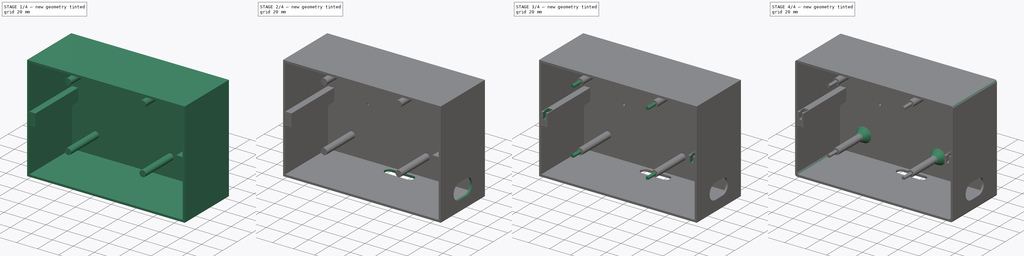
[diagram: build sequence overview — one tinted view per stage of 4, left to right]
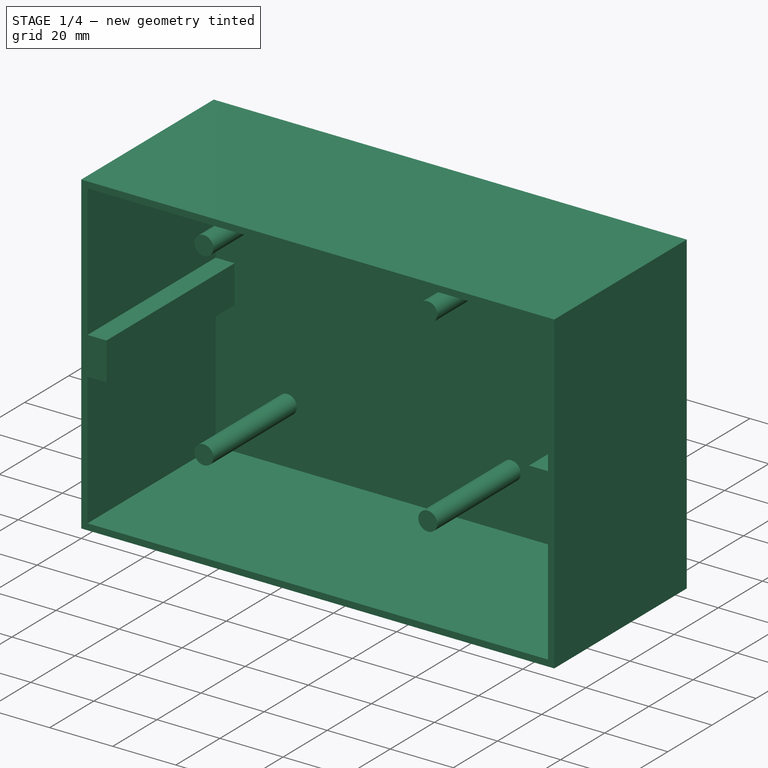
[diagram: stage 1 of 4 — iso view after this stage's code; geometry added in this stage tinted green]
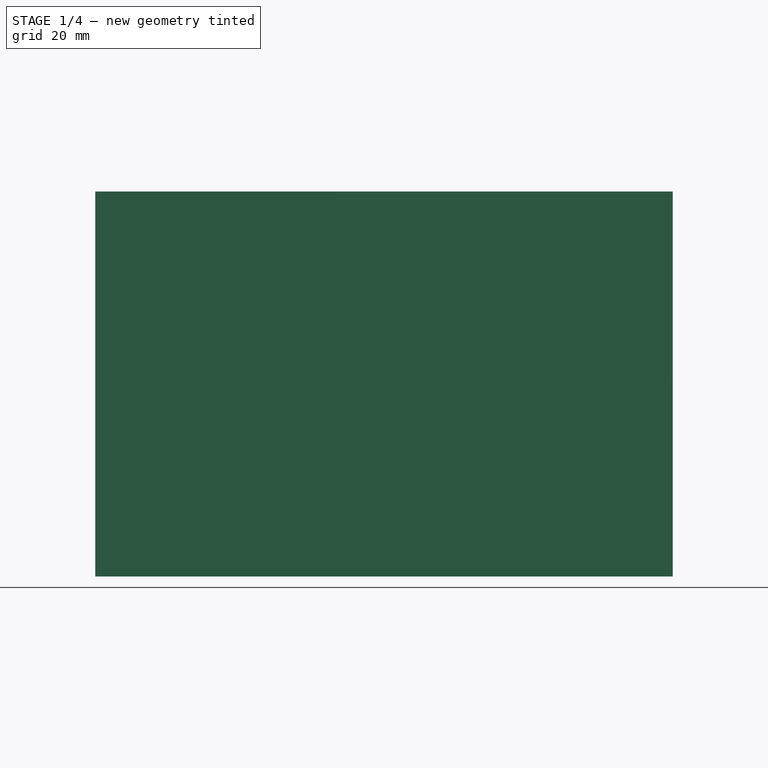
[diagram: stage 1 of 4 — front view after this stage's code; geometry added in this stage tinted green]
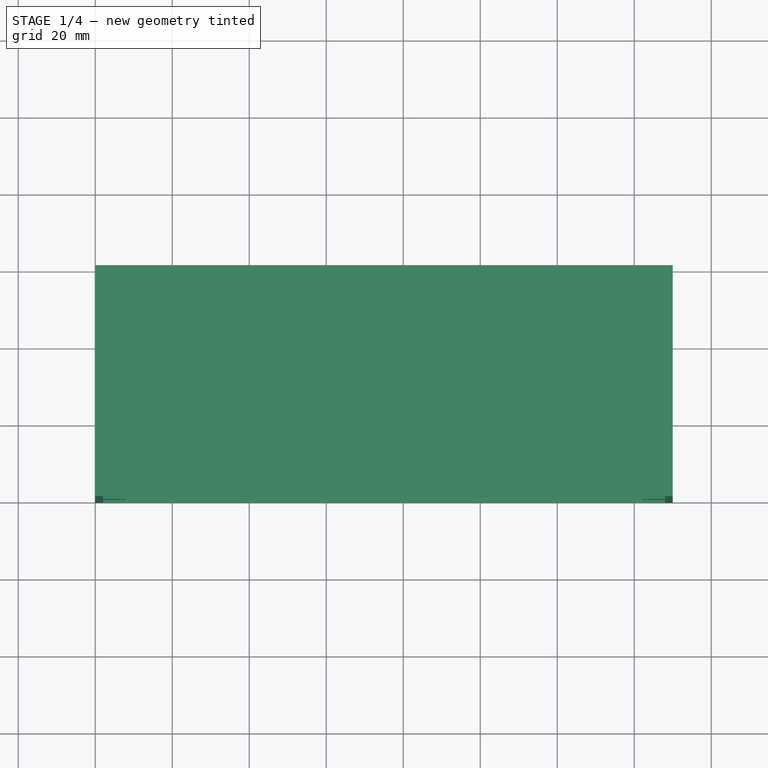
[diagram: stage 1 of 4 — top view after this stage's code; geometry added in this stage tinted green]
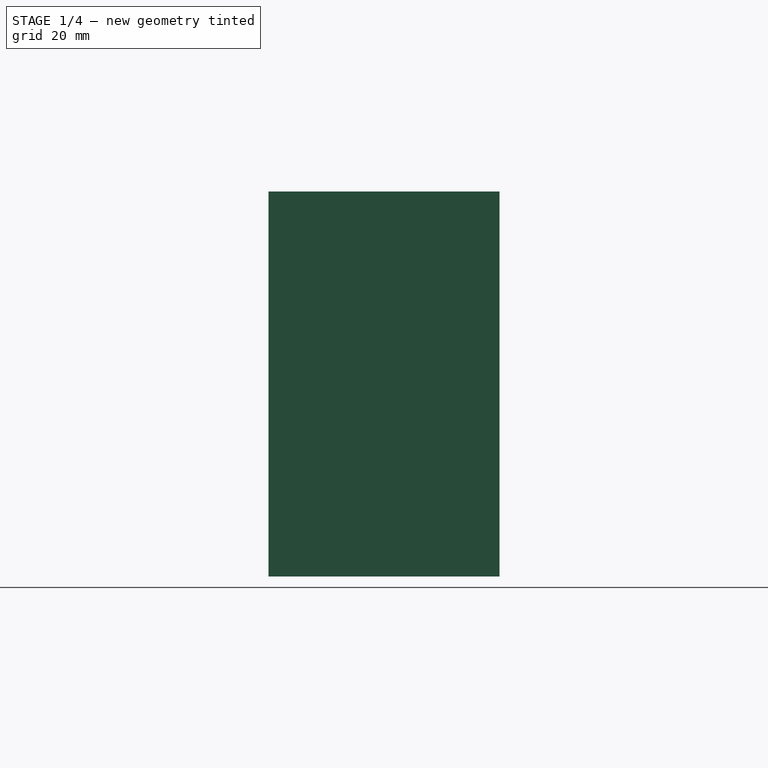
[diagram: stage 1 of 4 — right view after this stage's code; geometry added in this stage tinted green]
FCSTD DOCUMENT  (FreeCAD 0.19R22665 (Git))
Label: box_part
License: All rights reserved
LicenseURL: http://en.wikipedia.org/wiki/All_rights_reserved
objects: Sketcher::SketchObject×9, PartDesign::Pocket×6, PartDesign::Pad×3, PartDesign::CoordinateSystem×3, PartDesign::Fillet×2, PartDesign::Chamfer×1, PartDesign::Body×1
note: 37 computed .brp shape members not serialized (recipe doc carries the construction recipe); baked Part::Feature solids carry a one-line shape summary decoded from their .brp

FEATURE [Sketcher::SketchObject] Sketch
  MapMode = 5
  Placement = pos=(0,0,0) rot=(1,0,0;1.5708rad)
  Support = -> [XZ_Plane]
  sketch-geometry (4):
    g0: LineSegment StartX=0 StartY=0 StartZ=0 EndX=150 EndY=0 EndZ=0
    g1: LineSegment StartX=150 StartY=0 StartZ=0 EndX=150 EndY=100 EndZ=0
    g2: LineSegment StartX=150 StartY=100 StartZ=0 EndX=0 EndY=100 EndZ=0
    g3: LineSegment StartX=0 StartY=100 StartZ=0 EndX=0 EndY=0 EndZ=0
  constraints (11):
    c: Coincident(g0,g1)
    c: Coincident(g1,g2)
    c: Coincident(g2,g3)
    c: Coincident(g3,g0)
    c: Horizontal(g0)
    c: Horizontal(g2)
    c: Vertical(g1)
    c: Vertical(g3)
    c: Coincident(g0,g-1)
    c: Distance(g2) = 150
    c: Distance(g3) = 100
FEATURE [PartDesign::Pad] Pad
  Direction = (1,1,1)
  Length = 60
  Length2 = 100
  Placement = pos=(0,0,0) rot=(1,0,0;1.5708rad)
  Profile = -> Sketch
  Type = 0
FEATURE [Sketcher::SketchObject] Sketch001
  ExternalGeometry = -> [Pad]
  MapMode = 5
  Placement = pos=(0,-60,-1.32e-14) rot=(1,0,0;1.5708rad)
  Support = -> [Pad]
  sketch-geometry (13):
    g0: LineSegment StartX=2 StartY=98 StartZ=0 EndX=148 EndY=98 EndZ=0
    g1: LineSegment StartX=148 StartY=98 StartZ=0 EndX=148 EndY=56 EndZ=0
    g2: LineSegment StartX=148 StartY=56 StartZ=0 EndX=142 EndY=56 EndZ=0
    g3: LineSegment StartX=142 StartY=56 StartZ=0 EndX=142 EndY=44 EndZ=0
    g4: LineSegment StartX=142 StartY=44 StartZ=0 EndX=148 EndY=44 EndZ=0
    g5: LineSegment StartX=148 StartY=44 StartZ=0 EndX=148 EndY=2 EndZ=0
    g6: LineSegment StartX=148 StartY=2 StartZ=0 EndX=2 EndY=2 EndZ=0
    g7: LineSegment StartX=2 StartY=2 StartZ=0 EndX=2 EndY=44 EndZ=0
    g8: LineSegment StartX=2 StartY=44 StartZ=0 EndX=8 EndY=44 EndZ=0
    g9: LineSegment StartX=8 StartY=44 StartZ=0 EndX=8 EndY=56 EndZ=0
    g10: LineSegment StartX=8 StartY=56 StartZ=0 EndX=2 EndY=56 EndZ=0
    g11: LineSegment StartX=2 StartY=56 StartZ=0 EndX=2 EndY=98 EndZ=0
    g12: LineSegment [constr] StartX=0 StartY=50 StartZ=0 EndX=150 EndY=50 EndZ=0
  constraints (37):
    c: Horizontal(g0)
    c: Coincident(g0,g1)
    c: Vertical(g1)
    c: Coincident(g1,g2)
    c: Horizontal(g2)
    c: Coincident(g2,g3)
    c: Vertical(g3)
    c: Coincident(g3,g4)
    c: Horizontal(g4)
    c: Coincident(g4,g5)
    c: Vertical(g5)
    c: Coincident(g5,g6)
    c: Horizontal(g6)
    c: Coincident(g6,g7)
    c: Vertical(g7)
    c: Coincident(g7,g8)
    c: Horizontal(g8)
    c: Coincident(g8,g9)
    c: Vertical(g9)
    c: Coincident(g9,g10)
    c: Horizontal(g10)
    c: Coincident(g10,g11)
    c: Coincident(g11,g0)
    c: Vertical(g11)
    c: DistanceX(g-1,g6) = 2
    c: DistanceY(g-1,g6) = 2
    c: DistanceX(g5,g-5) = 2
    c: DistanceY(g0,g-6) = 2
    c: PointOnObject(g12,g-4)
    c: PointOnObject(g12,g-5)
    c: Symmetric(g-6,g-1,g12)
    c: Symmetric(g10,g7,g12)
    c: DistanceX(g10,g10) = 6
    c: DistanceY(g9,g9) = 12
    c: Equal(g2,g10)
    c: Equal(g3,g9)
    c: Symmetric(g1,g4,g12)
FEATURE [PartDesign::Pocket] Pocket
  BaseFeature = -> Pad
  Length = 58
  Length2 = 100
  Placement = pos=(0,0,0) rot=(1,0,0;1.5708rad)
  Profile = -> Sketch001
  Type = 0
FEATURE [Sketcher::SketchObject] Sketch002
  ExternalGeometry = -> [Pocket]
  MapMode = 5
  Placement = pos=(0,-2,-4e-16) rot=(1,0,0;1.5708rad)
  Support = -> [Pocket]
  sketch-geometry (20):
    g0: LineSegment [constr] StartX=20.75 StartY=68 StartZ=0 EndX=100.75 EndY=68 EndZ=0
    g1: LineSegment [constr] StartX=100.75 StartY=68 StartZ=0 EndX=100.75 EndY=32 EndZ=0
    g2: LineSegment [constr] StartX=100.75 StartY=32 StartZ=0 EndX=20.75 EndY=32 EndZ=0
    g3: LineSegment [constr] StartX=20.75 StartY=32 StartZ=0 EndX=20.75 EndY=68 EndZ=0
    g4: LineSegment [constr] StartX=8 StartY=50 StartZ=0 EndX=142 EndY=50 EndZ=0
    g5: Circle [constr] CenterX=121.75 CenterY=50 CenterZ=0 NormalX=0 NormalY=0 NormalZ=1 AngleXU=0 Radius=9.5
    g6: LineSegment [constr] StartX=101.75 StartY=14 StartZ=0 EndX=18.75 EndY=14 EndZ=0
    g7: LineSegment [constr] StartX=18.75 StartY=14 StartZ=0 EndX=18.75 EndY=86 EndZ=0
    g8: LineSegment [constr] StartX=18.75 StartY=86 StartZ=0 EndX=101.75 EndY=86 EndZ=0
    g9: LineSegment [constr] StartX=101.75 StartY=86 StartZ=0 EndX=101.75 EndY=14 EndZ=0
    g10: LineSegment [constr] StartX=101.75 StartY=59 StartZ=0 EndX=107.75 EndY=59 EndZ=0
    g11: LineSegment [constr] StartX=107.75 StartY=59 StartZ=0 EndX=107.75 EndY=72 EndZ=0
    g12: LineSegment [constr] StartX=107.75 StartY=72 StartZ=0 EndX=101.75 EndY=72 EndZ=0
    g13: LineSegment [constr] StartX=101.75 StartY=72 StartZ=0 EndX=101.75 EndY=59 EndZ=0
    g14: Circle [constr] CenterX=13.375 CenterY=50 CenterZ=0 NormalX=0 NormalY=0 NormalZ=1 AngleXU=0 Radius=5.375
    g15: Circle [constr] CenterX=136.625 CenterY=50 CenterZ=0 NormalX=0 NormalY=0 NormalZ=1 AngleXU=0 Radius=5.375
    g16: Circle CenterX=24.75 CenterY=80 CenterZ=0 NormalX=0 NormalY=0 NormalZ=1 AngleXU=0 Radius=3
    g17: Circle CenterX=95.75 CenterY=80 CenterZ=0 NormalX=0 NormalY=0 NormalZ=1 AngleXU=0 Radius=3
    g18: Circle CenterX=24.75 CenterY=20 CenterZ=0 NormalX=0 NormalY=0 NormalZ=1 AngleXU=0 Radius=3
    g19: Circle CenterX=95.75 CenterY=20 CenterZ=0 NormalX=0 NormalY=0 NormalZ=1 AngleXU=0 Radius=3
  constraints (59):
    c: Coincident(g0,g1)
    c: Coincident(g1,g2)
    c: Coincident(g2,g3)
    c: Coincident(g3,g0)
    c: Horizontal(g0)
    c: Horizontal(g2)
    c: Vertical(g1)
    c: DistanceY(g3,g3) = 36
    c: DistanceX(g0,g0) = 80
    c: PointOnObject(g4,g-13)
    c: PointOnObject(g4,g-11)
    c: Symmetric(g-13,g-14,g4)
    c: Symmetric(g0,g2,g4)
    c: PointOnObject(g5,g4)
    c: Diameter(g5) = 19
    c: Coincident(g6,g7)
    c: Coincident(g7,g8)
    c: Coincident(g8,g9)
    c: Coincident(g9,g6)
    c: Horizontal(g6)
    c: Horizontal(g8)
    c: Vertical(g7)
    c: Vertical(g9)
    c: DistanceX(g6,g2) = 2
    c: DistanceY(g0,g7) = 18
    c: DistanceY(g6,g2) = 18
    c: DistanceX(g8,g8) = 83
    c: Coincident(g10,g11)
    c: Coincident(g11,g12)
    c: Coincident(g12,g13)
    c: Coincident(g13,g10)
    c: Horizontal(g10)
    c: Horizontal(g12)
    c: Vertical(g11)
    c: Vertical(g13)
    c: PointOnObject(g10,g9)
    c: DistanceY(g11,g11) = 13
    c: DistanceY(g12,g8) = 14
    c: DistanceX(g12,g12) = 6
    c: DistanceX(g6,g5) = 20
    c: PointOnObject(g14,g4)
    c: PointOnObject(g4,g14)
    c: Tangent(g14,g7)
    c: PointOnObject(g15,g4)
    c: PointOnObject(g4,g15)
    c: Tangent(g15,g5)
    c: Equal(g15,g14)
    c: DistanceX(g7,g16) = 6
    c: DistanceY(g16,g7) = 6
    c: Diameter(g16) = 6
    c: Horizontal(g17,g16)
    c: Equal(g17,g16)
    c: DistanceX(g17,g8) = 6
    c: Equal(g18,g16)
    c: Vertical(g16,g18)
    c: DistanceY(g6,g18) = 6
    c: Equal(g19,g16)
    c: Horizontal(g19,g18)
    c: Vertical(g17,g19)
FEATURE [PartDesign::Pad] Pad001
  BaseFeature = -> Pocket
  Direction = (1,1,1)
  Length = 37.8
  Length2 = 100
  Placement = pos=(0,0,0) rot=(1,0,0;1.5708rad)
  Profile = -> Sketch002
  Type = 0
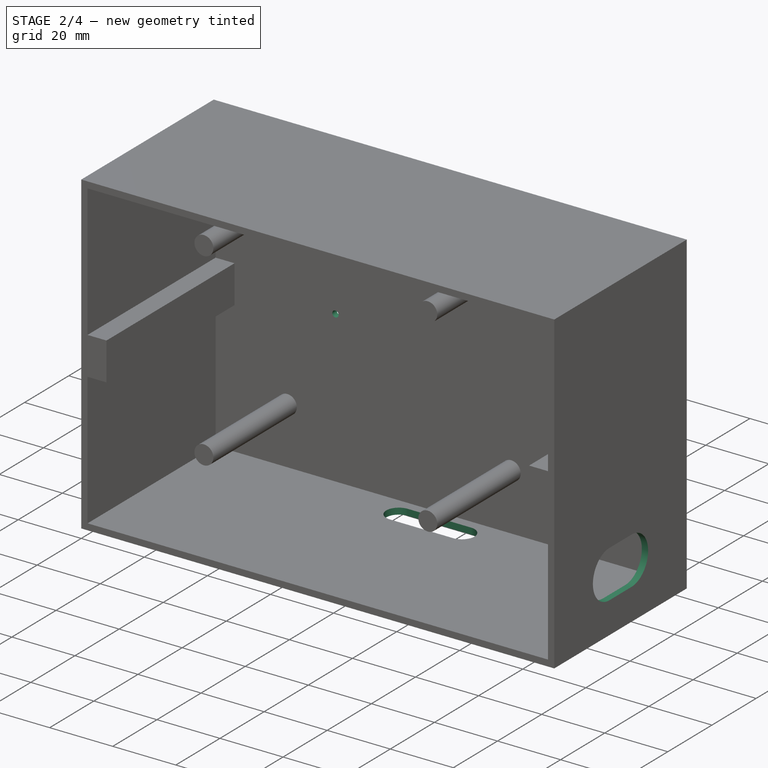
[diagram: stage 2 of 4 — iso view after this stage's code; geometry added in this stage tinted green]
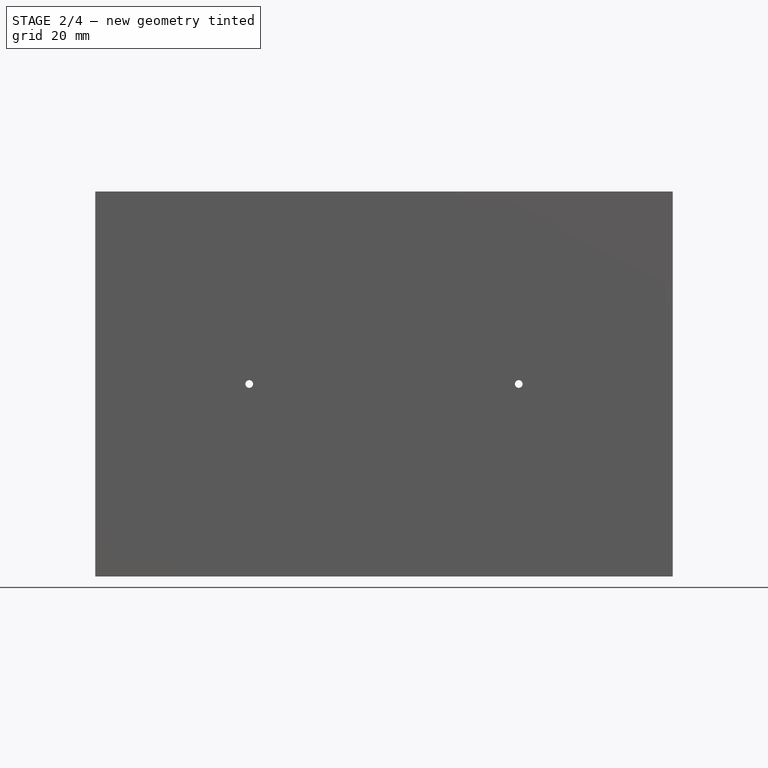
[diagram: stage 2 of 4 — front view after this stage's code; geometry added in this stage tinted green]
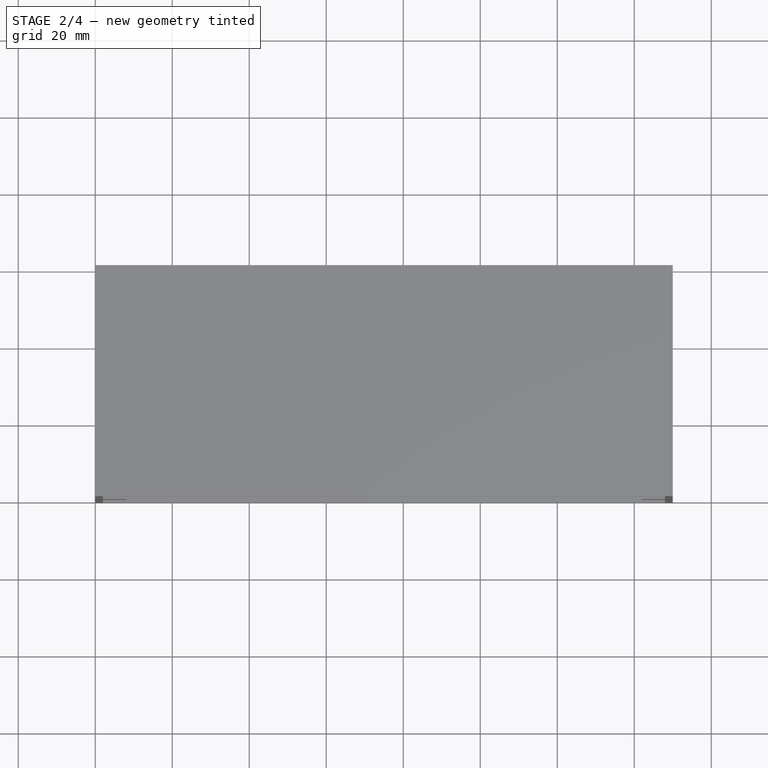
[diagram: stage 2 of 4 — top view after this stage's code; geometry added in this stage tinted green]
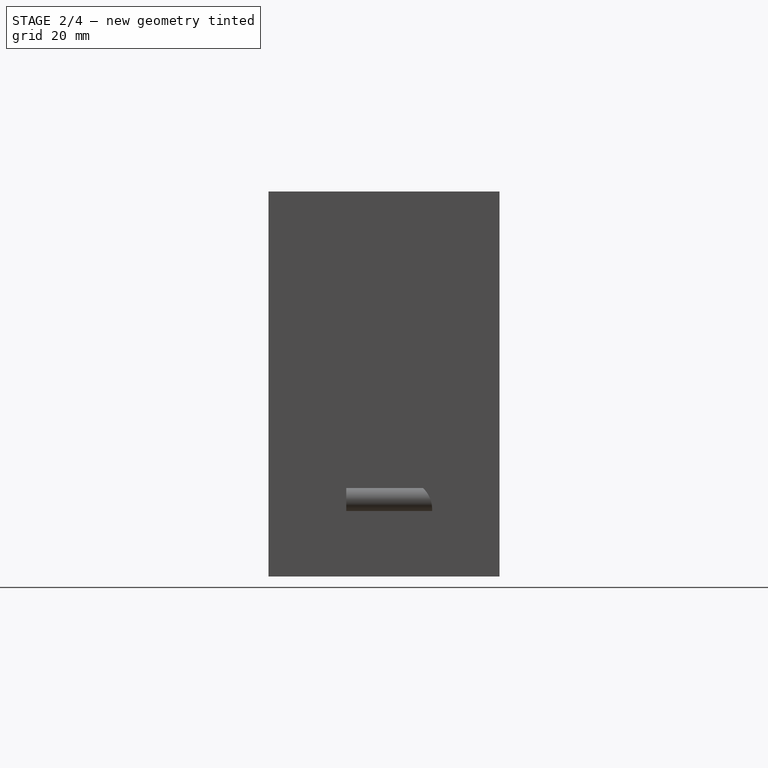
[diagram: stage 2 of 4 — right view after this stage's code; geometry added in this stage tinted green]
FEATURE [Sketcher::SketchObject] Sketch005
  MapMode = 5
  Placement = pos=(0,0,0) rot=(1,0,0;3.14159rad)
  sketch-geometry (5):
    g0: LineSegment [constr] StartX=75 StartY=60 StartZ=0 EndX=75 EndY=0 EndZ=0
    g1: ArcOfCircle CenterX=65 CenterY=9 CenterZ=0 NormalX=0 NormalY=0 NormalZ=1 AngleXU=0 Radius=4 StartAngle=1.5708 EndAngle=4.71239
    g2: ArcOfCircle CenterX=85 CenterY=9 CenterZ=0 NormalX=0 NormalY=0 NormalZ=1 AngleXU=0 Radius=4 StartAngle=4.71239 EndAngle=7.85398
    g3: LineSegment StartX=65 StartY=5 StartZ=0 EndX=85 EndY=5 EndZ=0
    g4: LineSegment StartX=65 StartY=13 StartZ=0 EndX=85 EndY=13 EndZ=0
  constraints (9):
    c: Tangent(g1,g4)
    c: Tangent(g1,g3)
    c: Tangent(g3,g2)
    c: Tangent(g4,g2)
    c: Horizontal(g3)
    c: DistanceX(g1,g2) = 20
    c: DistanceY(g1,g1) = 8
    c: Symmetric(g2,g1,g0)
    c: DistanceY(g0,g2) = 5
FEATURE [PartDesign::Pocket] Pocket001
  BaseFeature = -> Pad001
  Length = 5
  Length2 = 100
  Placement = pos=(0,0,0) rot=(1,0,0;1.5708rad)
  Profile = -> Sketch005
  Type = 2
FEATURE [Sketcher::SketchObject] Sketch006
  ExternalGeometry = -> [Pocket001]
  MapMode = 5
  Placement = pos=(150,0,0) rot=(0.707107,0,0.707107;3.14159rad)
  Support = -> [Pocket001]
  sketch-geometry (5):
    g0: LineSegment [constr] StartX=0 StartY=30 StartZ=0 EndX=2 EndY=30 EndZ=0
    g1: ArcOfCircle CenterX=17.5 CenterY=35 CenterZ=0 NormalX=0 NormalY=0 NormalZ=1 AngleXU=0 Radius=7.5 StartAngle=1e-16 EndAngle=3.14159
    g2: ArcOfCircle CenterX=17.5 CenterY=25 CenterZ=0 NormalX=0 NormalY=0 NormalZ=1 AngleXU=0 Radius=7.5 StartAngle=3.14159 EndAngle=6.28319
    g3: LineSegment StartX=10 StartY=35 StartZ=0 EndX=10 EndY=25 EndZ=0
    g4: LineSegment StartX=25 StartY=35 StartZ=0 EndX=25 EndY=25 EndZ=0
  constraints (12):
    c: PointOnObject(g0,g-6)
    c: PointOnObject(g0,g-4)
    c: Symmetric(g-6,g-1,g0)
    c: Tangent(g1,g4)
    c: Tangent(g1,g3)
    c: Tangent(g3,g2)
    c: Tangent(g4,g2)
    c: Vertical(g3)
    c: Symmetric(g1,g2,g0)
    c: DistanceX(g1,g1) = 15
    c: Distance(g1,g2) = 10
    c: DistanceX(g-6,g1) = 10
FEATURE [PartDesign::Pocket] Pocket002
  BaseFeature = -> Pocket001
  Length = 5
  Length2 = 100
  Placement = pos=(0,0,0) rot=(1,0,0;1.5708rad)
  Profile = -> Sketch006
  Type = 2
FEATURE [Sketcher::SketchObject] Sketch007
  ExternalGeometry = -> [Pocket002]
  MapMode = 5
  Placement = pos=(0,-2,-4e-16) rot=(1,0,0;1.5708rad)
  Support = -> [Pocket002]
  sketch-geometry (4):
    g0: Circle CenterX=40 CenterY=50 CenterZ=0 NormalX=0 NormalY=0 NormalZ=1 AngleXU=0 Radius=1
    g1: Circle CenterX=110 CenterY=50 CenterZ=0 NormalX=0 NormalY=0 NormalZ=1 AngleXU=0 Radius=1
    g2: LineSegment [constr] StartX=8 StartY=50 StartZ=0 EndX=142 EndY=50 EndZ=0
    g3: LineSegment [constr] StartX=75 StartY=98 StartZ=0 EndX=75 EndY=2 EndZ=0
  constraints (11):
    c: Diameter(g0) = 2
    c: Equal(g1,g0)
    c: DistanceX(g0,g1) = 70
    c: PointOnObject(g2,g-3)
    c: PointOnObject(g2,g-4)
    c: Symmetric(g-4,g-4,g2)
    c: PointOnObject(g0,g2)
    c: PointOnObject(g3,g-5)
    c: PointOnObject(g3,g-6)
    c: Symmetric(g-5,g-5,g3)
    c: Symmetric(g0,g1,g3)
FEATURE [PartDesign::Pocket] Pocket003
  BaseFeature = -> Pocket002
  Length = 2
  Length2 = 100
  Placement = pos=(0,0,0) rot=(1,0,0;1.5708rad)
  Profile = -> Sketch007
  Type = 1
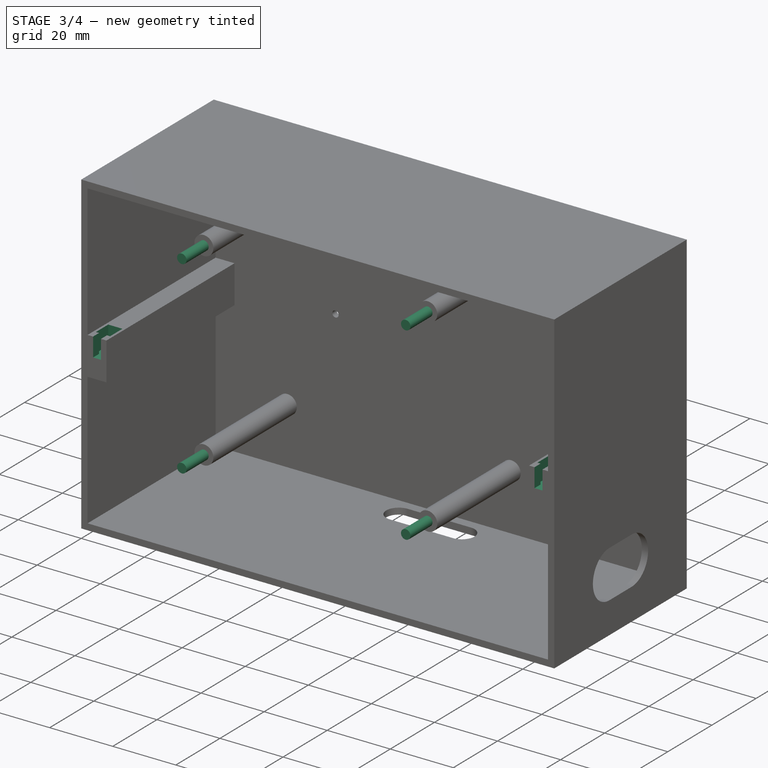
[diagram: stage 3 of 4 — iso view after this stage's code; geometry added in this stage tinted green]
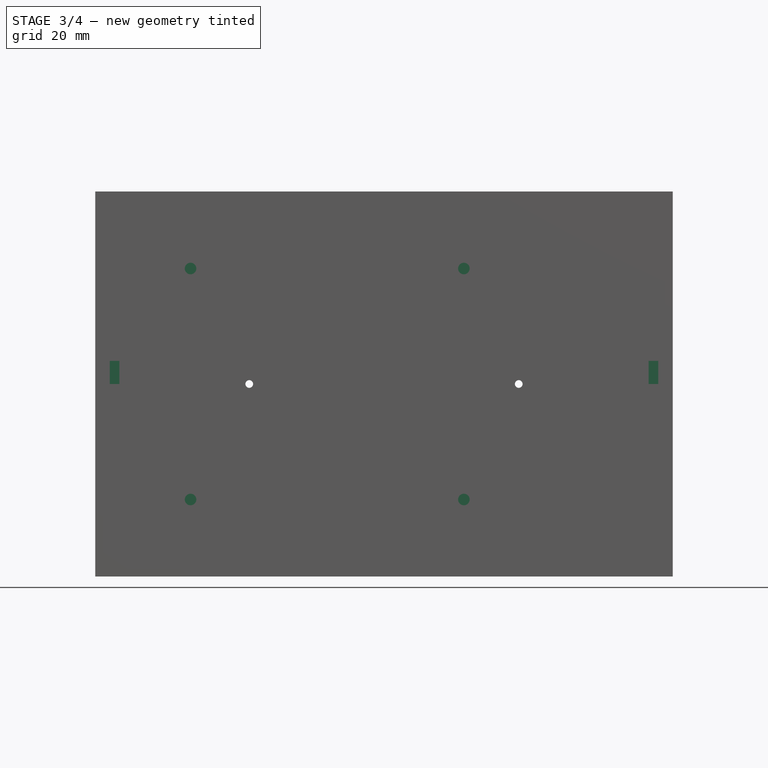
[diagram: stage 3 of 4 — front view after this stage's code; geometry added in this stage tinted green]
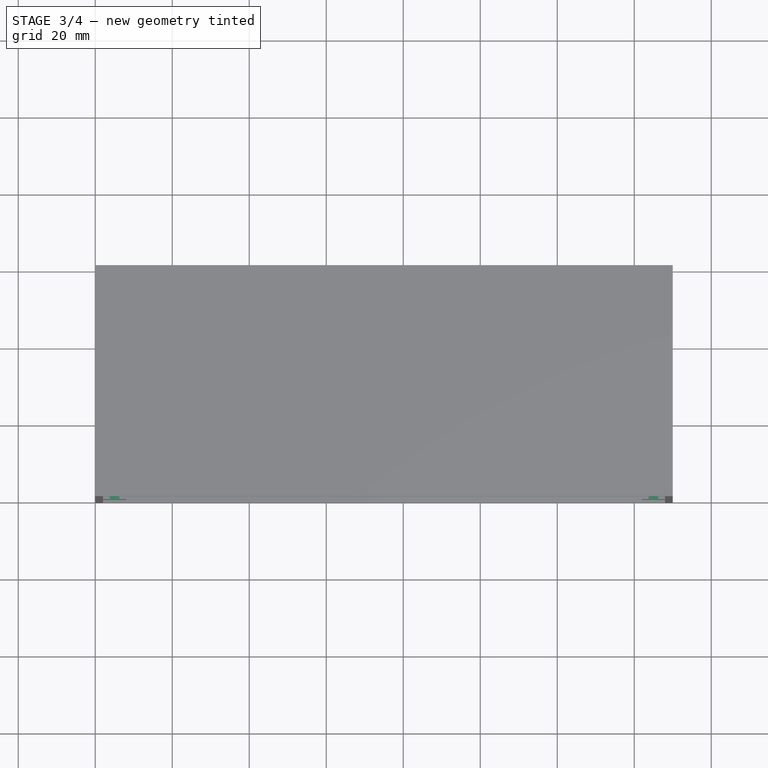
[diagram: stage 3 of 4 — top view after this stage's code; geometry added in this stage tinted green]
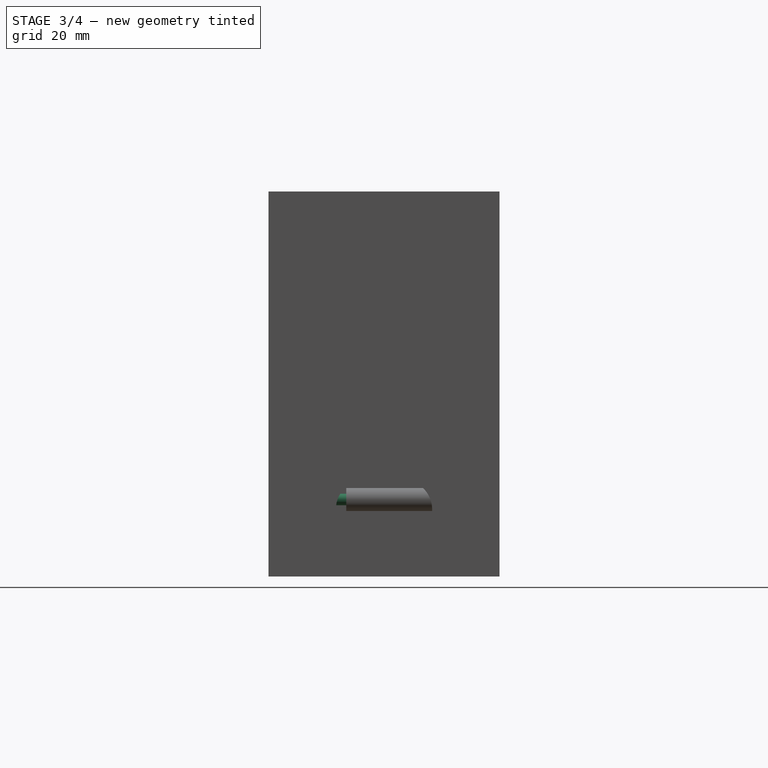
[diagram: stage 3 of 4 — right view after this stage's code; geometry added in this stage tinted green]
FEATURE [Sketcher::SketchObject] Sketch009
  ExternalGeometry = -> [Pocket003]
  MapMode = 5
  Placement = pos=(-2e-15,-39.8,-1.03e-14) rot=(1,0,0;1.5708rad)
  Support = -> [Pocket003]
  sketch-geometry (4):
    g0: Circle CenterX=24.75 CenterY=80 CenterZ=0 NormalX=0 NormalY=0 NormalZ=1 AngleXU=0 Radius=1.5
    g1: Circle CenterX=95.75 CenterY=80 CenterZ=0 NormalX=0 NormalY=0 NormalZ=1 AngleXU=0 Radius=1.5
    g2: Circle CenterX=24.75 CenterY=20 CenterZ=0 NormalX=0 NormalY=0 NormalZ=1 AngleXU=0 Radius=1.5
    g3: Circle CenterX=95.75 CenterY=20 CenterZ=0 NormalX=0 NormalY=0 NormalZ=1 AngleXU=0 Radius=1.5
  constraints (8):
    c: Coincident(g0,g-3)
    c: Coincident(g1,g-4)
    c: Coincident(g2,g-6)
    c: Coincident(g3,g-5)
    c: Diameter(g0) = 3
    c: Equal(g1,g0)
    c: Equal(g2,g0)
    c: Equal(g2,g3)
FEATURE [PartDesign::Pad] Pad003
  BaseFeature = -> Pocket003
  Direction = (1,1,1)
  Length = 10
  Length2 = 100
  Placement = pos=(0,0,0) rot=(1,0,0;1.5708rad)
  Profile = -> Sketch009
  Type = 0
FEATURE [Sketcher::SketchObject] Sketch010
  ExternalGeometry = -> [Pad003]
  MapMode = 5
  Placement = pos=(0,-1.85e-14,56) rot=(0,0,1;3.14159rad)
  Support = -> [Pad003]
  sketch-geometry (18):
    g0: LineSegment StartX=-3.75 StartY=60 StartZ=0 EndX=-3.75 EndY=57.3 EndZ=0
    g1: LineSegment StartX=-3.75 StartY=57.3 StartZ=0 EndX=-2.75 EndY=57.3 EndZ=0
    g2: LineSegment StartX=-2.75 StartY=57.3 StartZ=0 EndX=-2.75 EndY=51.7 EndZ=0
    g3: LineSegment StartX=-2.75 StartY=51.7 StartZ=0 EndX=-7.25 EndY=51.7 EndZ=0
    g4: LineSegment StartX=-7.25 StartY=51.7 StartZ=0 EndX=-7.25 EndY=57.3 EndZ=0
    g5: LineSegment StartX=-7.25 StartY=57.3 StartZ=0 EndX=-6.25 EndY=57.3 EndZ=0
    g6: LineSegment StartX=-6.25 StartY=57.3 StartZ=0 EndX=-6.25 EndY=60 EndZ=0
    g7: LineSegment StartX=-6.25 StartY=60 StartZ=0 EndX=-3.75 EndY=60 EndZ=0
    g8: LineSegment [constr] StartX=-2 StartY=50 StartZ=0 EndX=-8 EndY=50 EndZ=0
    g9: LineSegment [constr] StartX=-5 StartY=50 StartZ=0 EndX=-5 EndY=60 EndZ=0
    g10: LineSegment [constr] StartX=-6 StartY=60 StartZ=0 EndX=-4 EndY=60 EndZ=0
    g11: LineSegment [constr] StartX=-4 StartY=60 StartZ=0 EndX=-4 EndY=52 EndZ=0
    g12: LineSegment [constr] StartX=-4 StartY=52 StartZ=0 EndX=-6 EndY=52 EndZ=0
    g13: LineSegment [constr] StartX=-6 StartY=52 StartZ=0 EndX=-6 EndY=60 EndZ=0
    g14: LineSegment [constr] StartX=-7 StartY=52 StartZ=0 EndX=-3 EndY=52 EndZ=0
    g15: LineSegment [constr] StartX=-3 StartY=52 StartZ=0 EndX=-3 EndY=57 EndZ=0
    g16: LineSegment [constr] StartX=-3 StartY=57 StartZ=0 EndX=-7 EndY=57 EndZ=0
    g17: LineSegment [constr] StartX=-7 StartY=57 StartZ=0 EndX=-7 EndY=52 EndZ=0
  constraints (52):
    c: PointOnObject(g0,g-3)
    c: Vertical(g0)
    c: Coincident(g0,g1)
    c: Coincident(g1,g2)
    c: Vertical(g2)
    c: Coincident(g2,g3)
    c: Horizontal(g3)
    c: Coincident(g3,g4)
    c: Vertical(g4)
    c: Coincident(g4,g5)
    c: Horizontal(g5)
    c: Coincident(g5,g6)
    c: PointOnObject(g6,g-3)
    c: Vertical(g6)
    c: Coincident(g6,g7)
    c: Coincident(g7,g0)
    c: DistanceX(g6,g0) = 2.5
    c: DistanceX(g1,g1) = 1
    c: DistanceY(g4,g4) = 5.6
    c: Horizontal(g1)
    c: DistanceY(g6,g6) = 2.7
    c: PointOnObject(g8,g-5)
    c: Horizontal(g8)
    c: PointOnObject(g9,g8)
    c: Symmetric(g-5,g-4,g9)
    c: Symmetric(g0,g5,g9)
    c: DistanceY(g8,g-4) = 10
    c: PointOnObject(g9,g7)
    c: PointOnObject(g8,g-4)
    c: Equal(g1,g5)
    c: Coincident(g10,g11)
    c: Coincident(g11,g12)
    c: Coincident(g12,g13)
    c: Coincident(g13,g10)
    c: Horizontal(g12)
    c: Vertical(g11)
    c: Vertical(g13)
    c: PointOnObject(g10,g7)
    c: Symmetric(g10,g10,g9)
    c: DistanceX(g12,g12) = 2
    c: DistanceY(g13,g13) = 8
    c: Coincident(g14,g15)
    c: Coincident(g15,g16)
    c: Coincident(g16,g17)
    c: Coincident(g17,g14)
    c: Horizontal(g14)
    c: Vertical(g15)
    c: Vertical(g17)
    c: DistanceX(g16,g16) = 4
    c: Symmetric(g15,g16,g9)
    c: DistanceY(g15,g10) = 3
    c: DistanceY(g11,g14) = 0
FEATURE [PartDesign::Pocket] Pocket004
  BaseFeature = -> Pad003
  Length = 6
  Length2 = 100
  Placement = pos=(0,0,0) rot=(1,0,0;1.5708rad)
  Profile = -> Sketch010
  Type = 0
FEATURE [Sketcher::SketchObject] Sketch011
  ExternalGeometry = -> [Pocket004]
  MapMode = 5
  Placement = pos=(0,-1.85e-14,56) rot=(0,0,1;3.14159rad)
  Support = -> [Pocket004]
  sketch-geometry (9):
    g0: LineSegment StartX=-143.75 StartY=60 StartZ=0 EndX=-146.25 EndY=60 EndZ=0
    g1: LineSegment StartX=-146.25 StartY=60 StartZ=0 EndX=-146.25 EndY=57.3 EndZ=0
    g2: LineSegment StartX=-146.25 StartY=57.3 StartZ=0 EndX=-147.25 EndY=57.3 EndZ=0
    g3: LineSegment StartX=-147.25 StartY=57.3 StartZ=0 EndX=-147.25 EndY=51.7 EndZ=0
    g4: LineSegment StartX=-147.25 StartY=51.7 StartZ=0 EndX=-142.75 EndY=51.7 EndZ=0
    g5: LineSegment StartX=-142.75 StartY=51.7 StartZ=0 EndX=-142.75 EndY=57.3 EndZ=0
    g6: LineSegment StartX=-142.75 StartY=57.3 StartZ=0 EndX=-143.75 EndY=57.3 EndZ=0
    g7: LineSegment StartX=-143.75 StartY=57.3 StartZ=0 EndX=-143.75 EndY=60 EndZ=0
    g8: LineSegment [constr] StartX=-145 StartY=51.7 StartZ=0 EndX=-145 EndY=60 EndZ=0
  constraints (26):
    c: PointOnObject(g0,g-3)
    c: PointOnObject(g0,g-3)
    c: Coincident(g0,g1)
    c: Vertical(g1)
    c: Coincident(g1,g2)
    c: Coincident(g2,g3)
    c: Vertical(g3)
    c: Coincident(g3,g4)
    c: Horizontal(g4)
    c: Coincident(g4,g5)
    c: Coincident(g5,g6)
    c: Coincident(g6,g7)
    c: Coincident(g7,g0)
    c: Equal(g5,g3)
    c: Equal(g2,g6)
    c: Equal(g7,g1)
    c: Vertical(g7)
    c: DistanceX(g0,g0) = 2.5
    c: Horizontal(g6)
    c: DistanceX(g6,g6) = 1
    c: DistanceY(g7,g7) = 2.7
    c: DistanceY(g5,g5) = 5.6
    c: PointOnObject(g8,g4)
    c: PointOnObject(g8,g0)
    c: Symmetric(g-4,g-5,g8)
    c: Symmetric(g5,g2,g8)
FEATURE [PartDesign::Pocket] Pocket005
  BaseFeature = -> Pocket004
  Length = 6
  Length2 = 100
  Placement = pos=(0,0,0) rot=(1,0,0;1.5708rad)
  Profile = -> Sketch011
  Type = 0
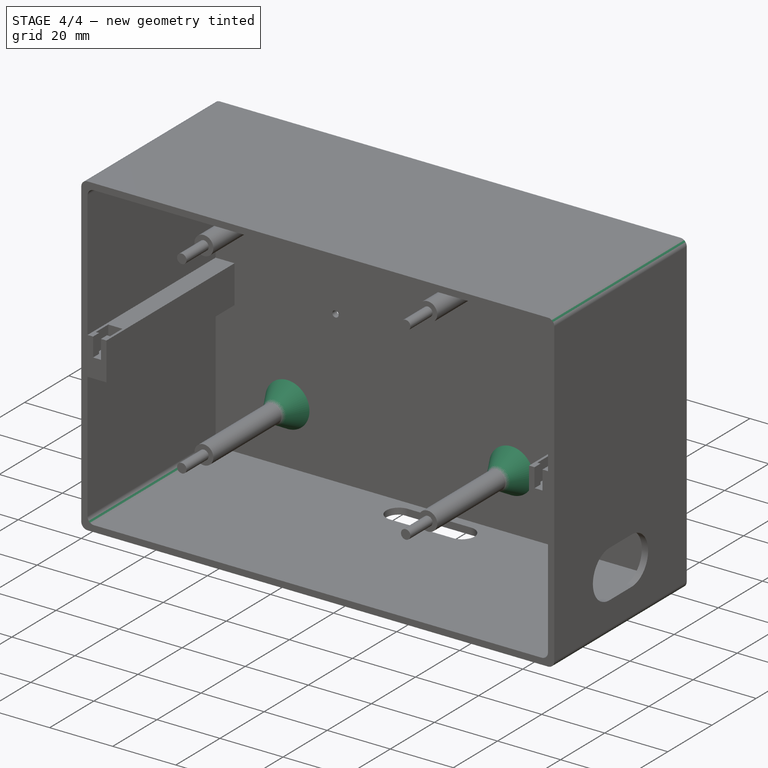
[diagram: stage 4 of 4 — iso view after this stage's code; geometry added in this stage tinted green]
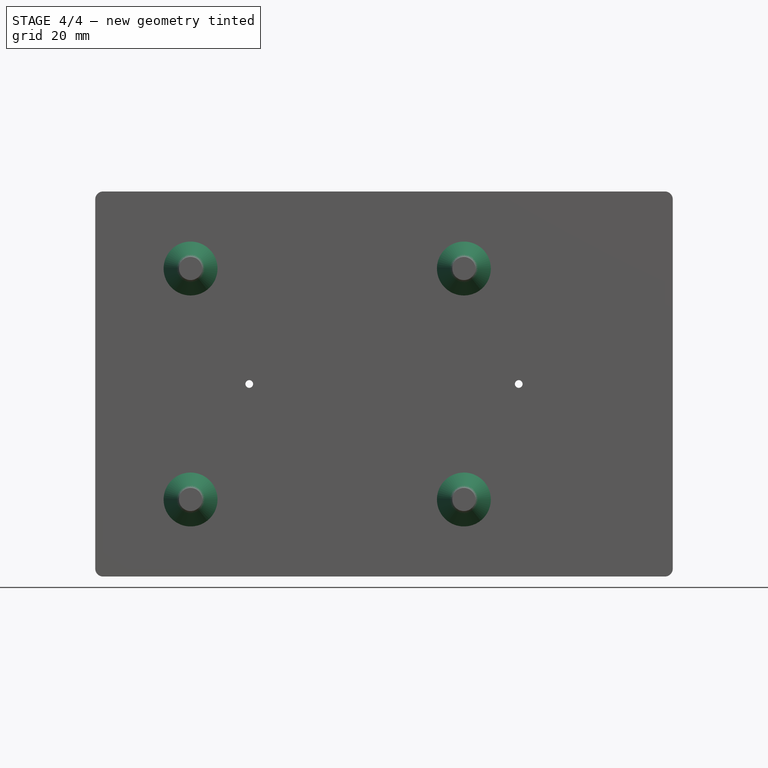
[diagram: stage 4 of 4 — front view after this stage's code; geometry added in this stage tinted green]
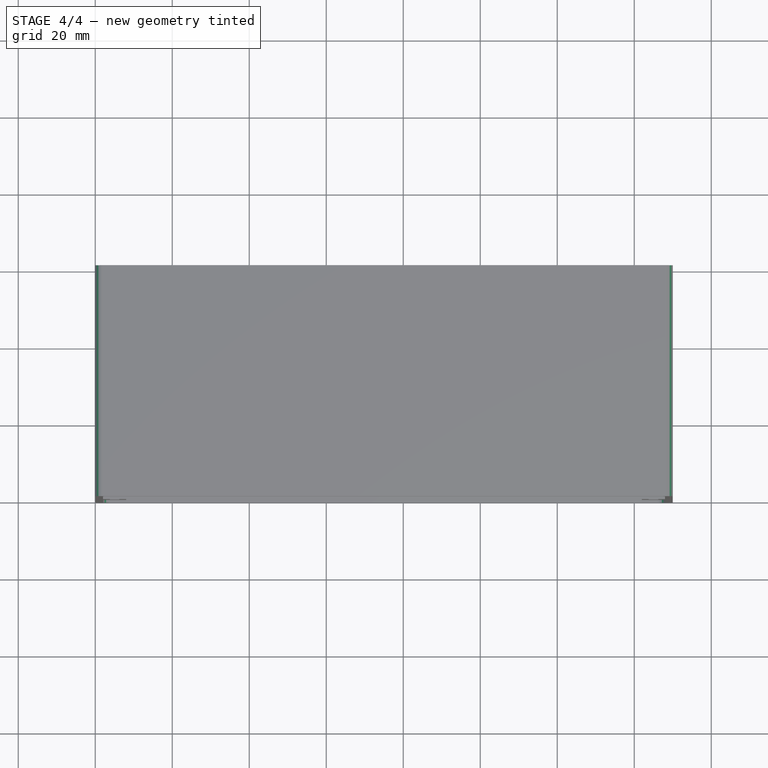
[diagram: stage 4 of 4 — top view after this stage's code; geometry added in this stage tinted green]
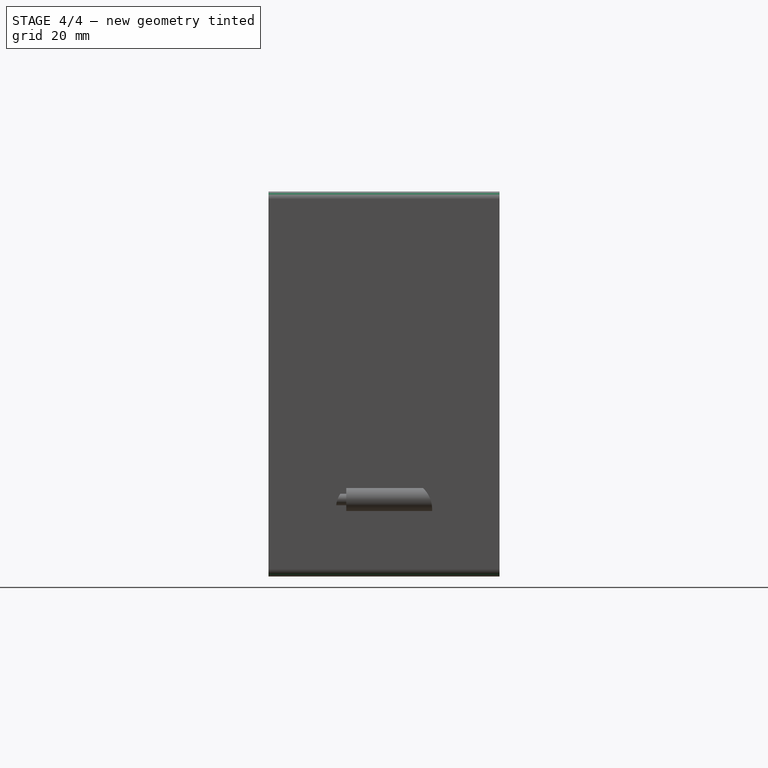
[diagram: stage 4 of 4 — right view after this stage's code; geometry added in this stage tinted green]
FEATURE [PartDesign::Chamfer] Chamfer
  Angle = 60
  Base = -> Pocket005 [Edge120,Edge122,Edge121,Edge119]
  BaseFeature = -> Pocket005
  ChamferType = 2
  FlipDirection = false
  Placement = pos=(0,0,0) rot=(1,0,0;1.5708rad)
  Size = 4
  Size2 = 1
  SupportTransform = false
FEATURE [PartDesign::Fillet] Fillet
  Base = -> Chamfer [Edge21,Edge56,Edge59,Edge23]
  BaseFeature = -> Chamfer
  Placement = pos=(0,0,0) rot=(1,0,0;1.5708rad)
  Radius = 2
  SupportTransform = false
FEATURE [PartDesign::Fillet] Fillet001
  Base = -> Fillet [Edge155,Edge157,Edge158,Edge156]
  BaseFeature = -> Fillet
  Placement = pos=(0,0,0) rot=(1,0,0;1.5708rad)
  Radius = 2
  SupportTransform = false
FEATURE [PartDesign::CoordinateSystem] LCS_backplane
  AttacherType = Attacher::AttachEngine3D
  MapMode = 5
  Placement = pos=(0,-2,-4e-16) rot=(0,0.707107,0.707107;3.14159rad)
  Support = -> [Fillet001]
FEATURE [PartDesign::CoordinateSystem] LCS_pcb
  AttacherType = Attacher::AttachEngine3D
  MapMode = 11
  Placement = pos=(24.75,-39.8,20) rot=(0.57735,-0.57735,0.57735;2.0944rad)
  Support = -> [Fillet001]
FEATURE [PartDesign::CoordinateSystem] LCS_coperchio
  AttacherType = Attacher::AttachEngine3D
  AttachmentOffset = pos=(0.3,0,-0.25) rot=(0,0,1;0rad)
  MapMode = 7
  Placement = pos=(3,-52,50) rot=(0.57735,-0.57735,-0.57735;2.0944rad)
  Support = -> [Fillet001]
FEATURE [PartDesign::Body] Body  label="box"
  Group = -> [Sketch,Pad,Sketch001,Pocket,Sketch002,Pad001,Sketch005,Pocket001,Sketch006,Pocket002,Sketch007,LCS_backplane,LCS_pcb,LCS_coperchio,Pocket003,Sketch009,Pad003,Sketch010,Pocket004,Sketch011,Pocket005,Chamfer,Fillet,Fillet001]
  Origin = -> Origin
  Tip = -> Fillet001
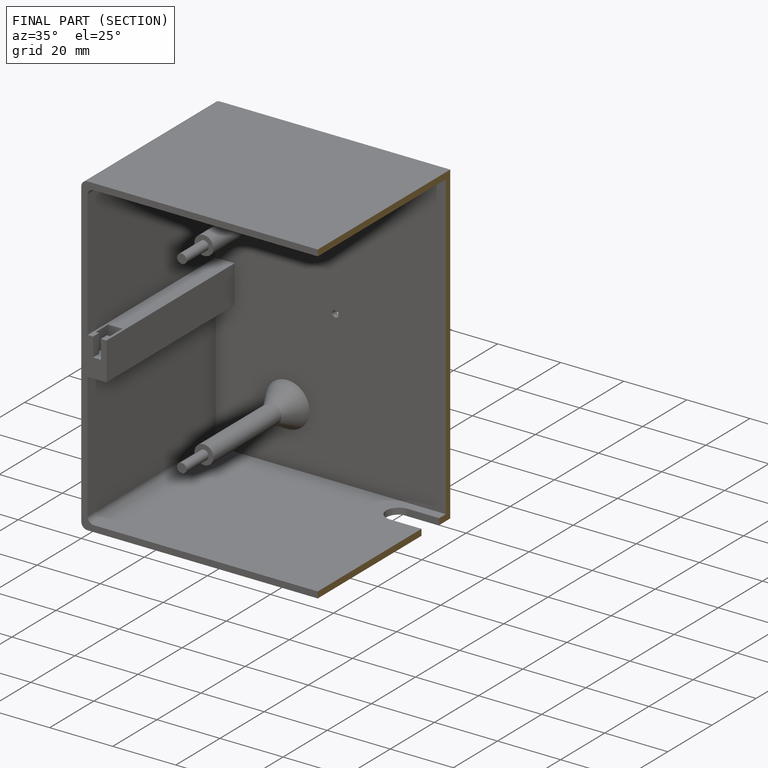
[diagram: finished part — half-section view (interior)]
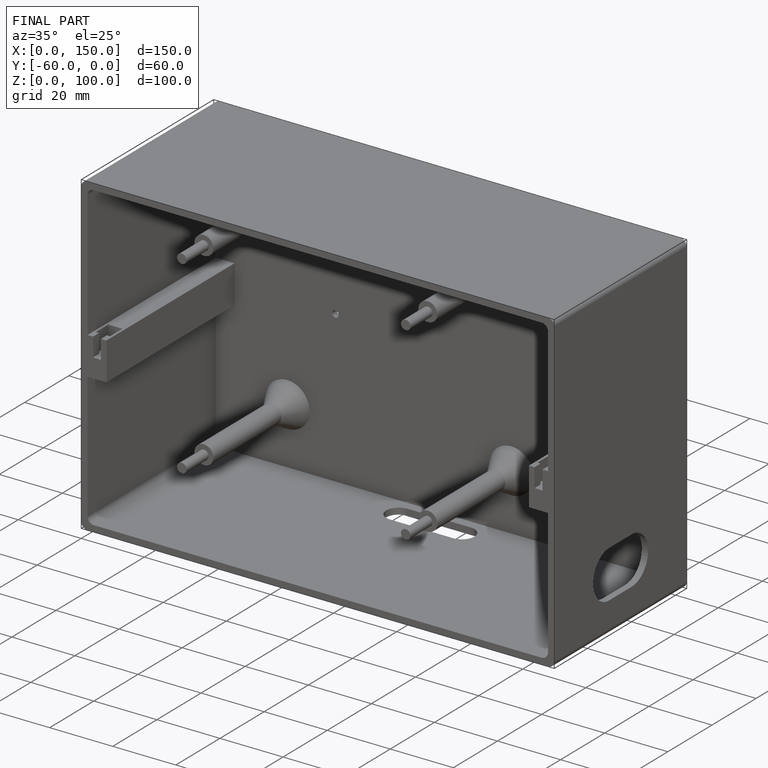
[diagram: finished part — iso view with bounding-box wireframe]
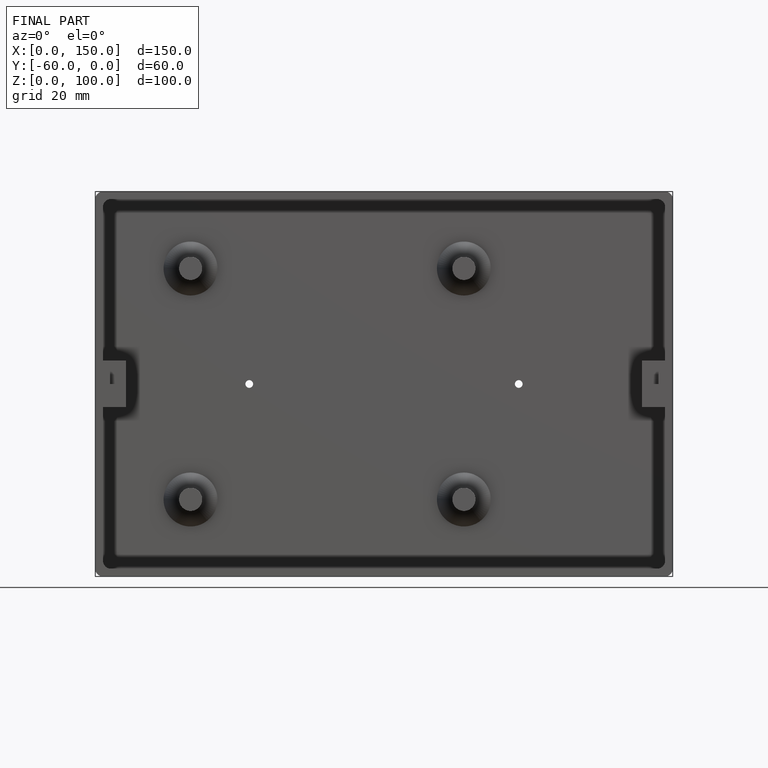
[diagram: finished part — front view with bounding-box wireframe]
